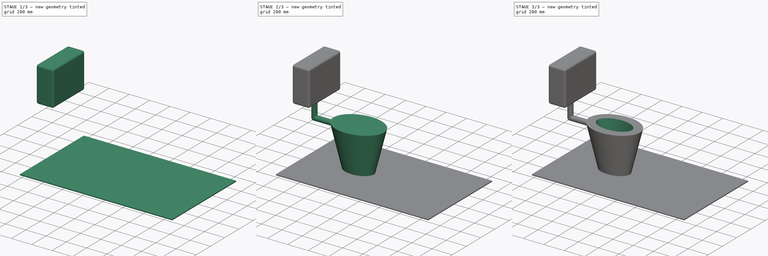
[diagram: build sequence overview — one tinted view per stage of 3, left to right]
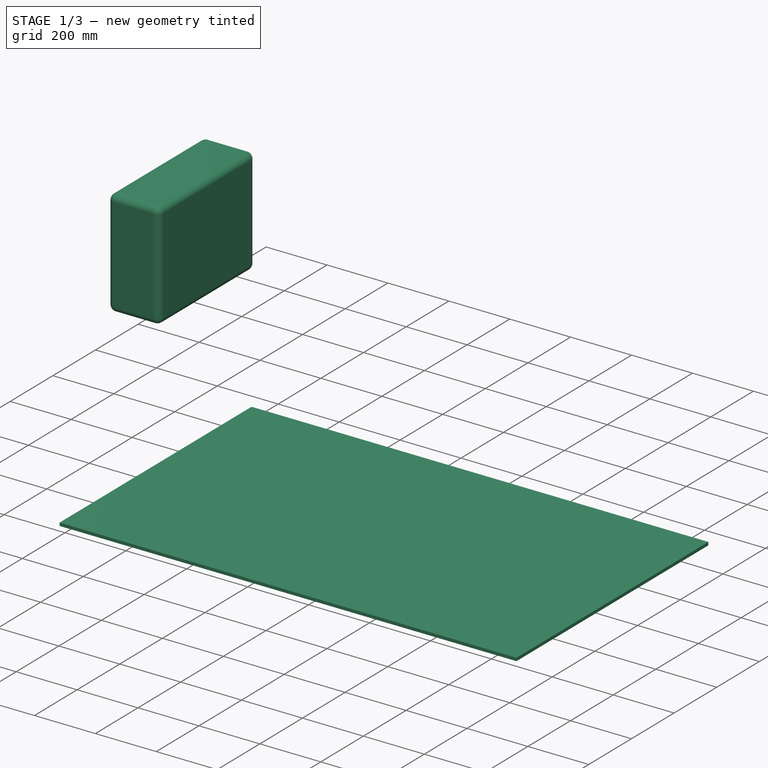
[diagram: stage 1 of 3 — iso view after this stage's code; geometry added in this stage tinted green]
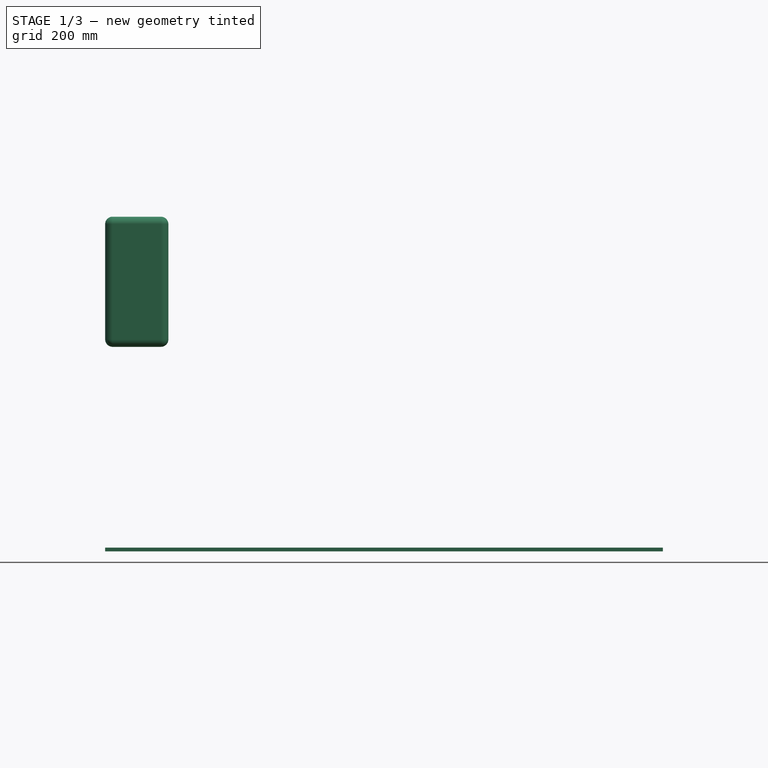
[diagram: stage 1 of 3 — front view after this stage's code; geometry added in this stage tinted green]
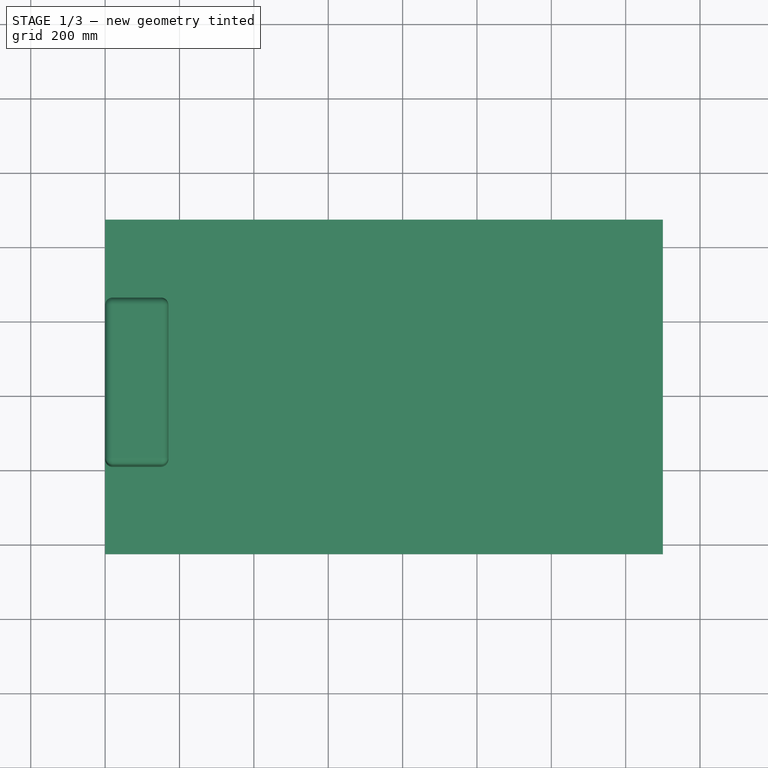
[diagram: stage 1 of 3 — top view after this stage's code; geometry added in this stage tinted green]
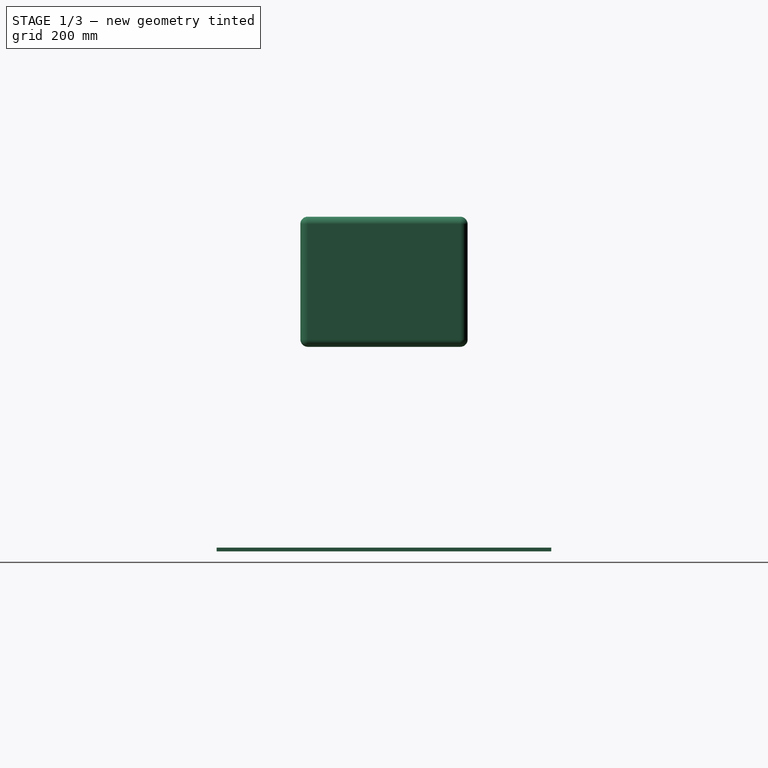
[diagram: stage 1 of 3 — right view after this stage's code; geometry added in this stage tinted green]
FCSTD DOCUMENT
Label: toilet
objects: Part::Ellipse×4, App::DocumentObjectGroup×3, Part::Loft×2, Part::Box×2, Part::Circle×2, Part::Cut×1, Sketcher::SketchObject×1, Part::Sweep×1, Part::Fillet×1, Part::MultiFuse×1, Part::Feature×1
note: 16 computed .brp shape members not serialized (recipe doc carries the construction recipe); baked Part::Feature solids carry a one-line shape summary decoded from their .brp

FEATURE [Part::Box] Box
  Height = 350
  Length = 170
  Placement = pos=(0,0,550) rot=(0,0,1;0rad)
  Width = 450
FEATURE [Part::Fillet] Fillet  label="Fillet_flusher_tank"
  Base = -> Box
  Edges = 12 edges r=20: [Edge1,Edge2,Edge3,Edge4,Edge5,Edge6,Edge7,Edge8,Edge9,Edge10,Edge11,Edge12]
FEATURE [Part::Box] Box001  label="total_floor_space_required"
  Height = 10
  Length = 1500
  Placement = pos=(0,-225,0) rot=(0,0,1;0rad)
  Width = 900
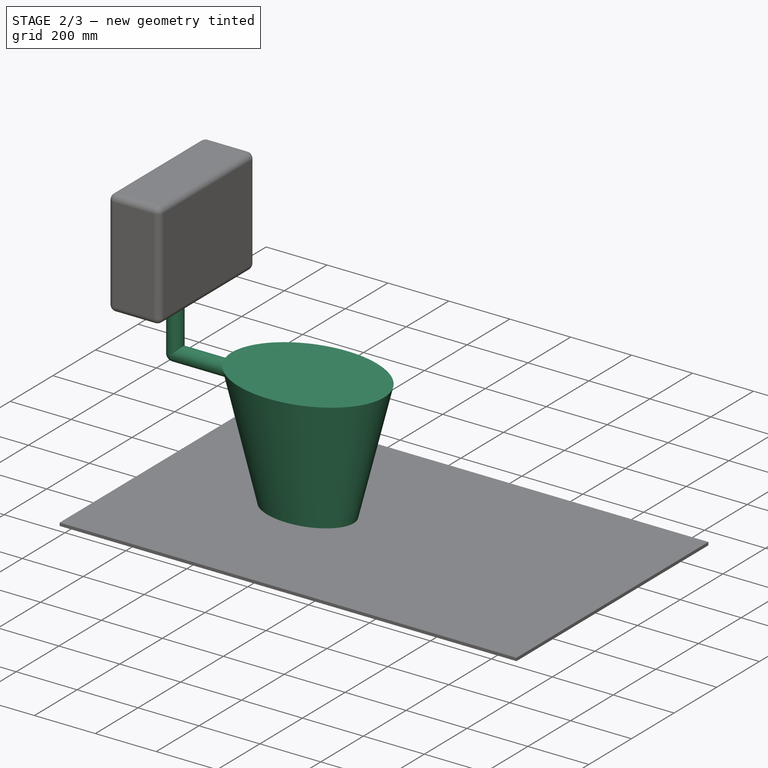
[diagram: stage 2 of 3 — iso view after this stage's code; geometry added in this stage tinted green]
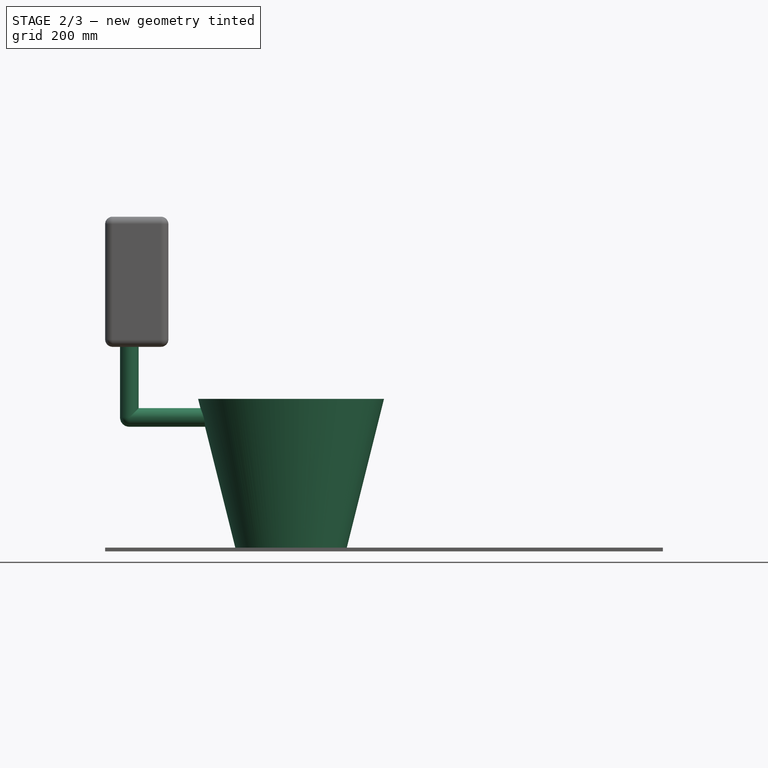
[diagram: stage 2 of 3 — front view after this stage's code; geometry added in this stage tinted green]
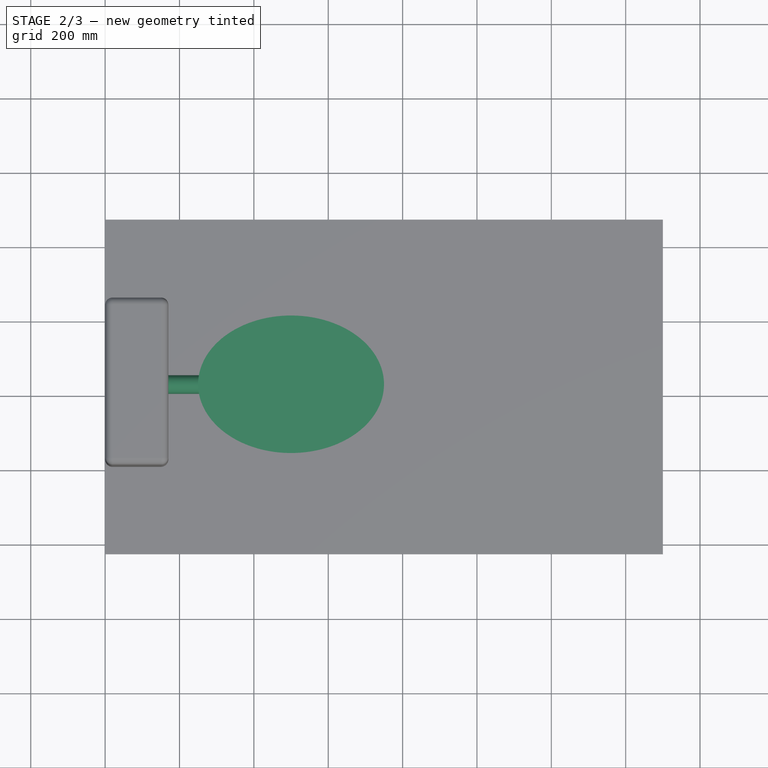
[diagram: stage 2 of 3 — top view after this stage's code; geometry added in this stage tinted green]
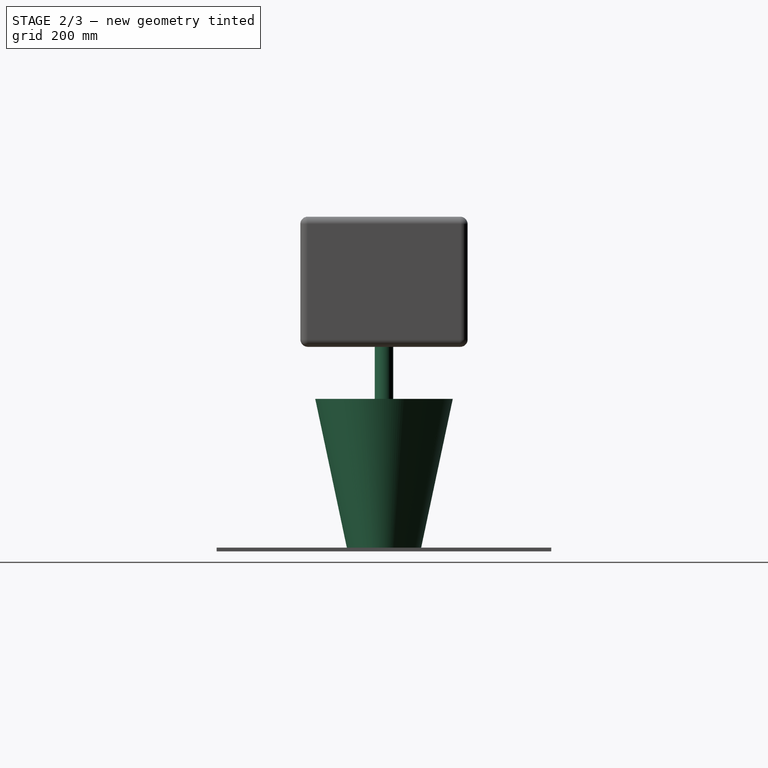
[diagram: stage 2 of 3 — right view after this stage's code; geometry added in this stage tinted green]
FEATURE [Part::Loft] Loft002
  Ruled = false
  Sections = -> [Ellipse002,Ellipse003]
  Solid = true
FEATURE [Sketcher::SketchObject] Sketch001
  Placement = pos=(0,225,0) rot=(-1,0,0;4.71239rad)
  sketch-geometry (2):
    g0: LineSegment StartX=65 StartY=565 StartZ=0 EndX=65 EndY=360 EndZ=0
    g1: LineSegment StartX=285 StartY=360 StartZ=0 EndX=65 EndY=360 EndZ=0
  constraints (7):
    c: Vertical(g0)
    c: Horizontal(g1)
    c: DistanceY(g0) = 565
    c: DistanceY(g1) = 360
    c: DistanceX(g0) = 65
    c: Coincident(g0,g1)
    c: DistanceX(g1) = -220
FEATURE [Part::Circle] Circle
  Angle0 = 0
  Angle1 = 360
  Placement = pos=(65,225,560) rot=(0,0,1;0rad)
  Radius = 25
FEATURE [Part::Circle] Circle001
  Angle0 = 0
  Angle1 = 360
  Placement = pos=(285,225,360) rot=(0,1,0;1.5708rad)
  Radius = 25
FEATURE [Part::Sweep] Sweep  label="Sweep_flush_water_pipe"
  Frenet = false
  Sections = -> [Circle,Circle001]
  Solid = true
  Spine = -> Sketch001
  Transition = 2
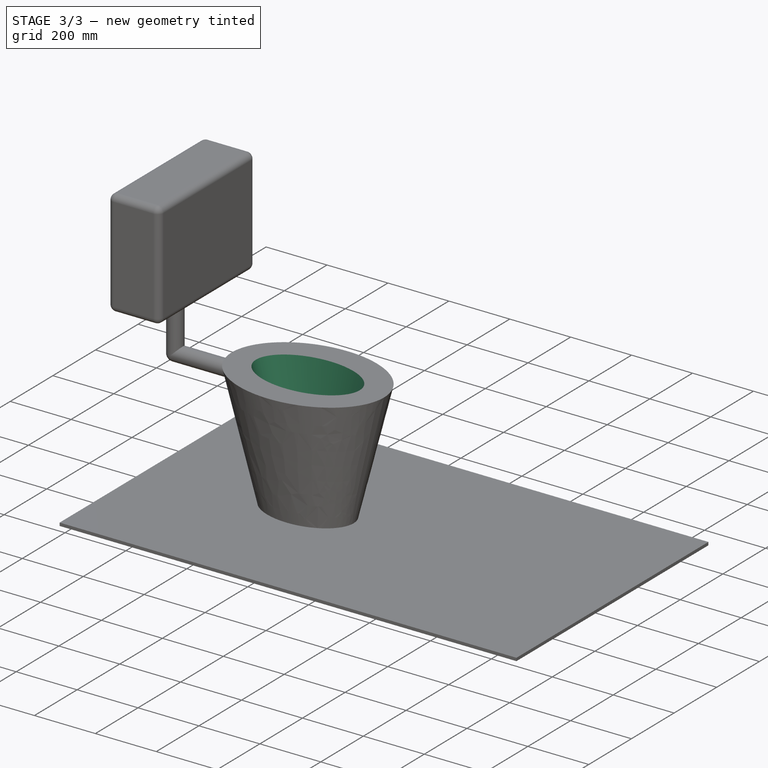
[diagram: stage 3 of 3 — iso view after this stage's code; geometry added in this stage tinted green]
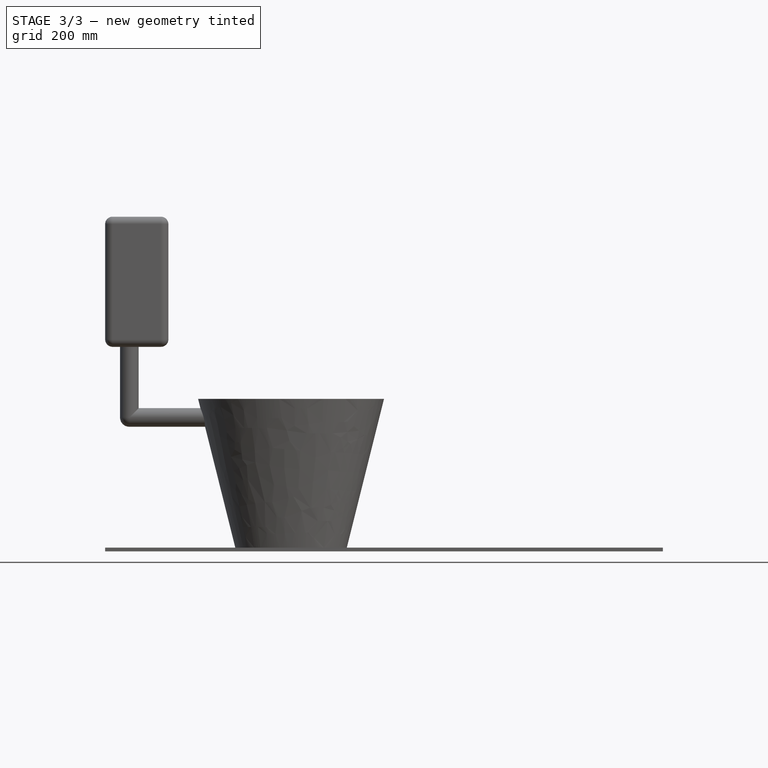
[diagram: stage 3 of 3 — front view after this stage's code; geometry added in this stage tinted green]
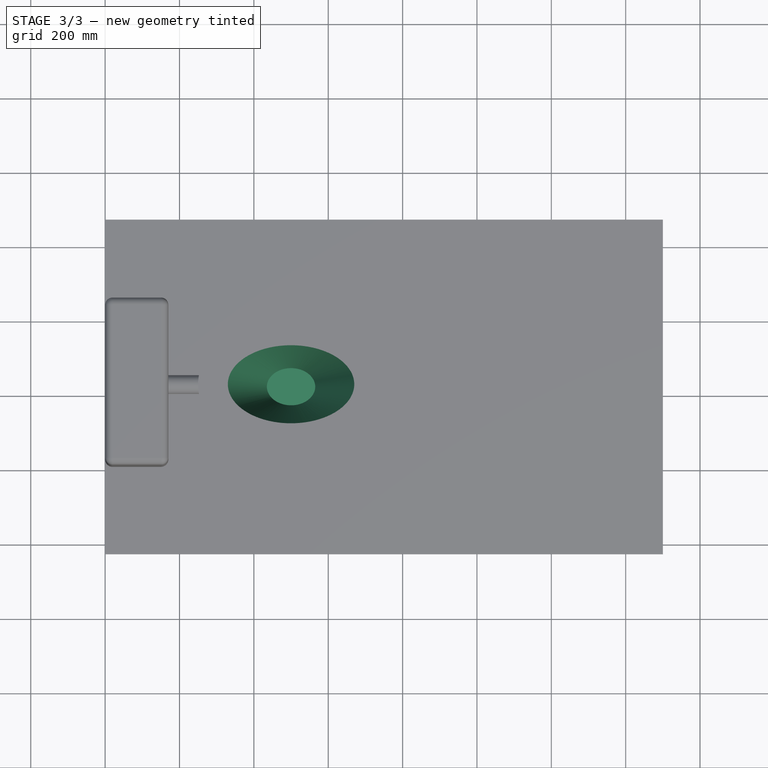
[diagram: stage 3 of 3 — top view after this stage's code; geometry added in this stage tinted green]
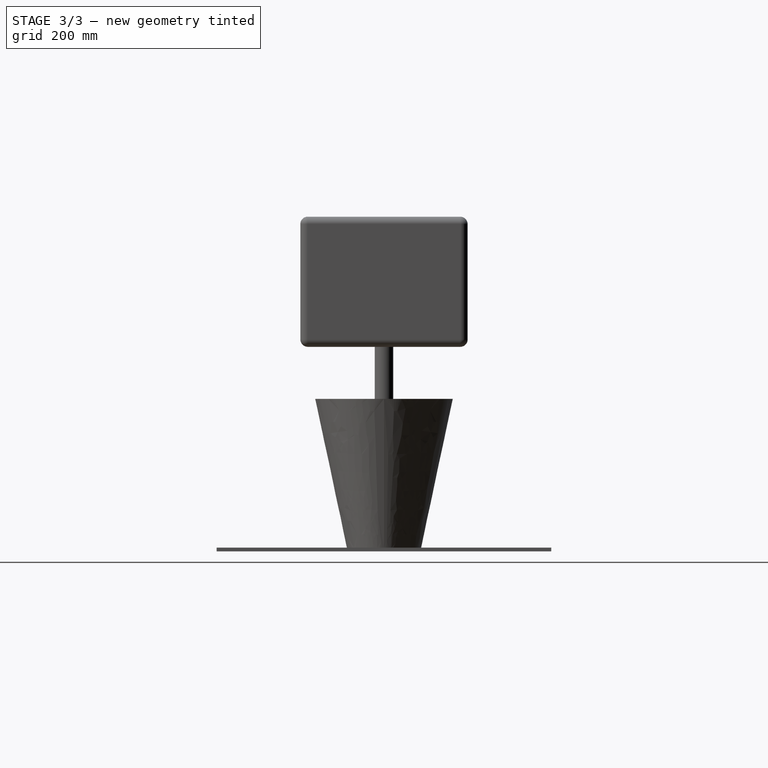
[diagram: stage 3 of 3 — right view after this stage's code; geometry added in this stage tinted green]
FEATURE [Part::Ellipse] Ellipse002
  Angle0 = 0
  Angle1 = 360
  MajorRadius = 150
  MinorRadius = 100
  Placement = pos=(500,225,10) rot=(0,0,1;0rad)
FEATURE [Part::Ellipse] Ellipse003
  Angle0 = 0
  Angle1 = 360
  MajorRadius = 250
  MinorRadius = 185
  Placement = pos=(500,225,410) rot=(0,0,1;0rad)
FEATURE [Part::Ellipse] Ellipse  label="Ellipse004"
  Angle0 = 0
  Angle1 = 360
  MajorRadius = 170
  MinorRadius = 105
  Placement = pos=(500,225,410) rot=(0,0,1;0rad)
FEATURE [Part::Ellipse] Ellipse004  label="Ellipse005"
  Angle0 = 0
  Angle1 = 360
  MajorRadius = 65
  MinorRadius = 50
  Placement = pos=(500,225,30) rot=(0,0,1;0rad)
FEATURE [Part::Loft] Loft
  Ruled = false
  Sections = -> [Ellipse,Ellipse004]
  Solid = true
FEATURE [Part::Cut] Cut  label="Cut_toilet_bowl"
  Base = -> Loft002
  Tool = -> Loft
FEATURE [Part::MultiFuse] Fusion  label="Fusion_toilet_full_assembly"
  Shapes = -> [Cut,Sweep,Fillet,Box001]
FEATURE [App::DocumentObjectGroup] Group  label="parametric_toilet_complete"
  Group = -> [Ellipse002,Ellipse003,Ellipse,Ellipse004,Cut,Sketch001,Circle,Circle001,Sweep,Fillet,Box001,Fusion]
FEATURE [Part::Feature] Fusion001  label="simple_copy_toilet_assembly"
  shape: bbox 1500 x 900 x 900 mm, 42 faces (baked)
FEATURE [App::DocumentObjectGroup] Group001  label="simple_copy_toilets"
  Group = -> [Fusion001]
FEATURE [App::DocumentObjectGroup] Group002  label="toilets"
  Group = -> [Group,Group001]
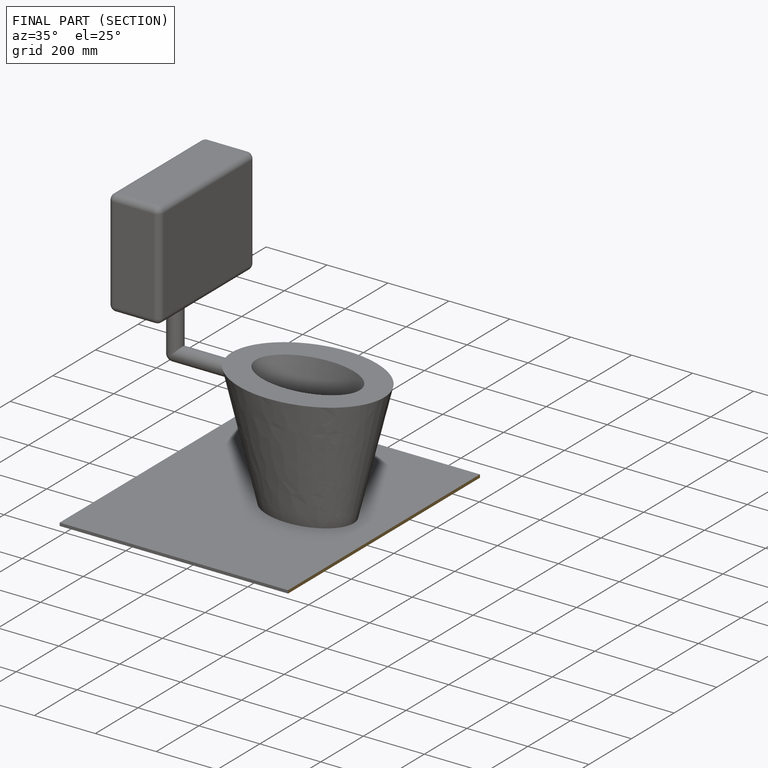
[diagram: finished part — half-section view (interior)]
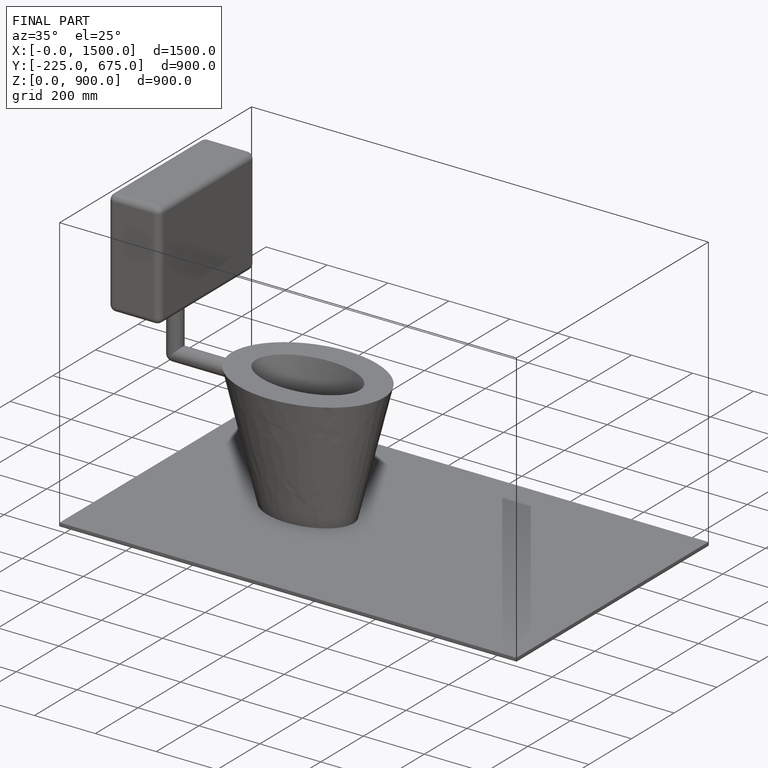
[diagram: finished part — iso view with bounding-box wireframe]
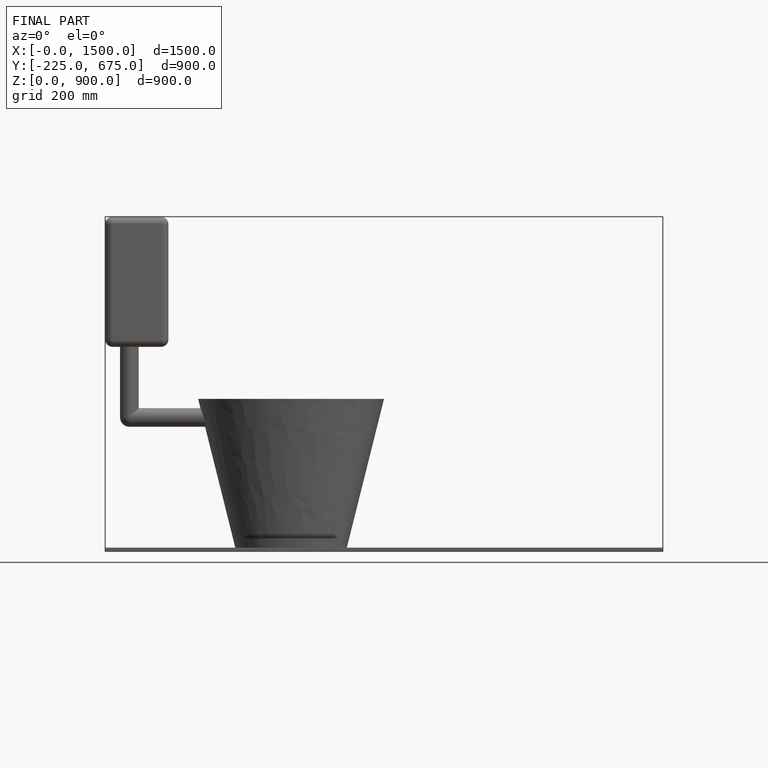
[diagram: finished part — front view with bounding-box wireframe]
